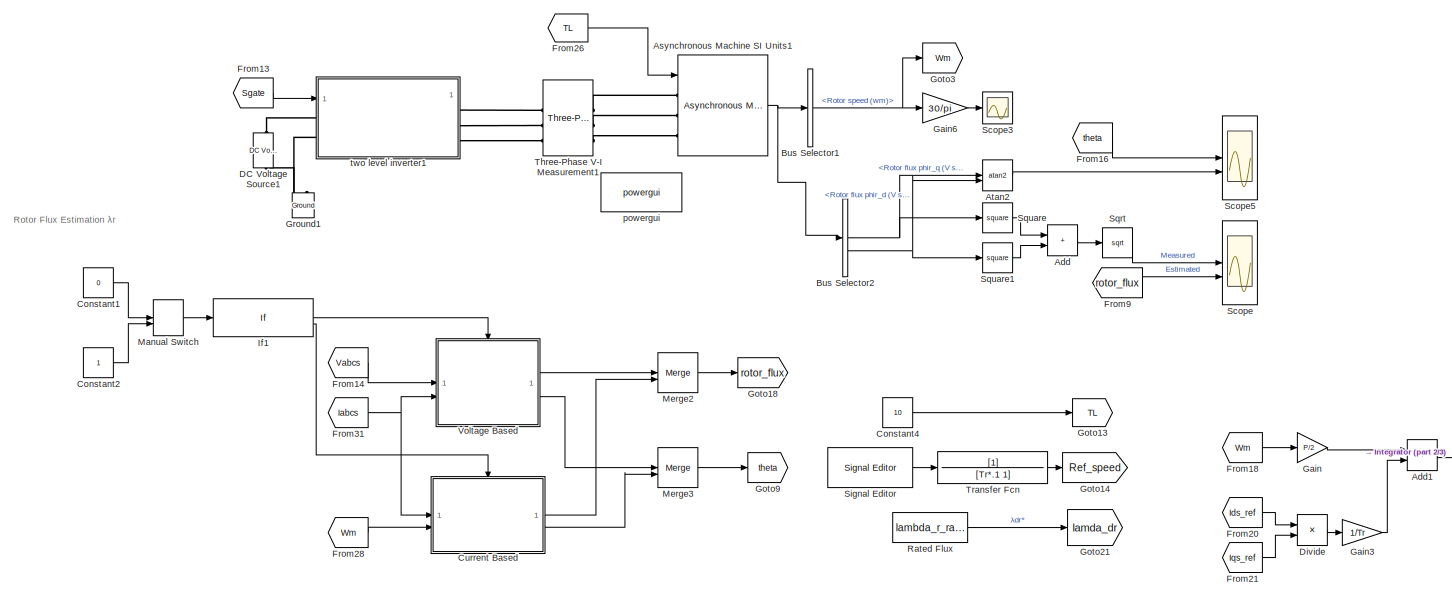
[diagram: root canvas - part 1/3, full width, top band]
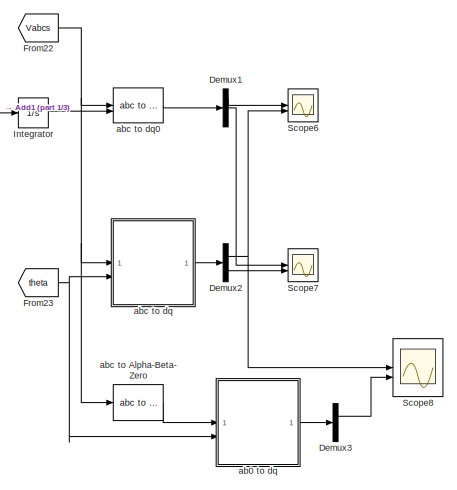
[diagram: root canvas - part 2/3, middle right region]
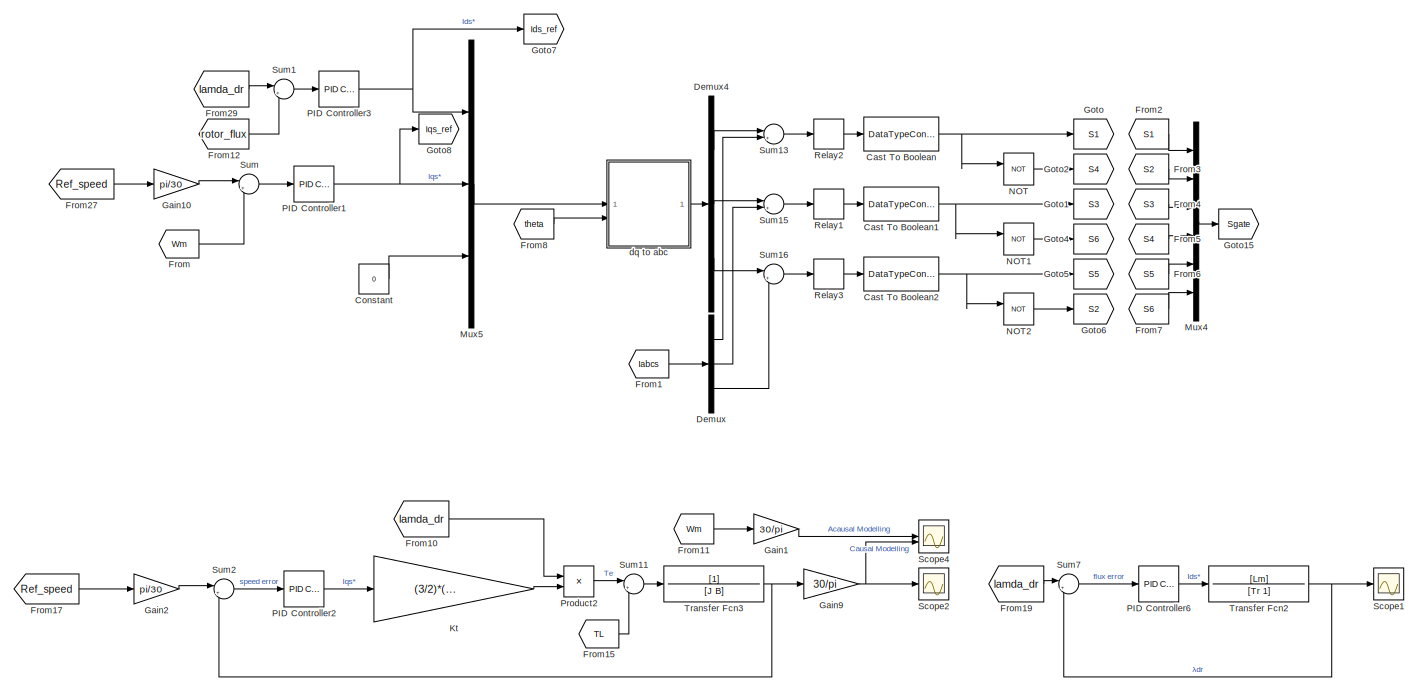
[diagram: root canvas - part 3/3, full width, bottom band]
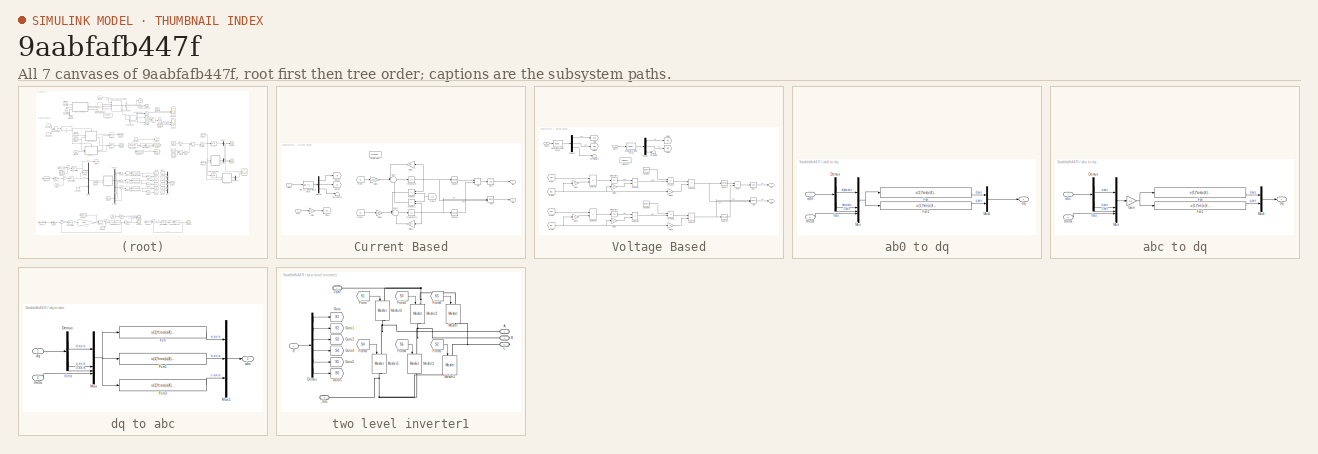
[diagram: thumbnail index - all 7 canvases of the model, root first then tree order]
MODEL slx_9aabfafb447f
KIND model
CONFIG AbsTol = auto
CONFIG EnableMultiTasking = off
CONFIG FixedStep = auto
CONFIG MaxStep = .001
CONFIG MinStep = auto
CONFIG RelTol = 1e-3
CONFIG SampleTimeConstraint = Unconstrained
CONFIG SolverName = VariableStepAuto
CONFIG StartTime = 0.0
CONFIG StopTime = 2
BLOCK [Sum] Add
  IconShape = rectangular
BLOCK [Sum] Add1
  IconShape = rectangular
BLOCK [Reference] Asynchronous Machine SI Units1  REF=spsAsynchronousMachineSIUnitsLib/Asynchronous Machine
SI Units
  SourceBlock = spsAsynchronousMachineSIUnitsLib/Asynchronous Machine\nSI Units
  SourceType = Asynchronous Machine
BLOCK [Trigonometry] Atan2
  Operator = atan2
BLOCK [BusSelector] Bus Selector1
  OutputSignals = Mechanical.Rotor speed (wm)
BLOCK [BusSelector] Bus Selector2
  OutputSignals = Rotor measurements.Rotor flux phir_q (V s),Rotor measurements.Rotor flux phir_d (V s)
BLOCK [DataTypeConversion] Cast To Boolean
  OutDataTypeStr = boolean
  RndMeth = Floor
  SaturateOnIntegerOverflow = off
BLOCK [DataTypeConversion] Cast To Boolean1
  OutDataTypeStr = boolean
  RndMeth = Floor
  SaturateOnIntegerOverflow = off
BLOCK [DataTypeConversion] Cast To Boolean2
  OutDataTypeStr = boolean
  RndMeth = Floor
  SaturateOnIntegerOverflow = off
BLOCK [Constant] Constant
  Value = 0
BLOCK [Constant] Constant1
  Value = 0
BLOCK [Constant] Constant2
BLOCK [Constant] Constant4
  Value = 10
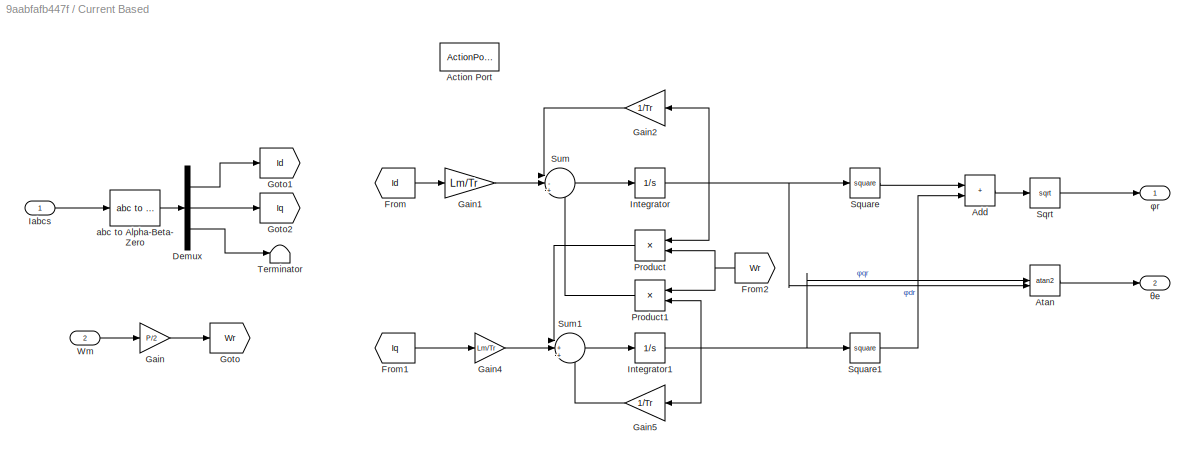
BLOCK [SubSystem] Current Based
BLOCK [ActionPort] Current Based/Action Port
  ActionPortLabel = else
BLOCK [Sum] Current Based/Add
  IconShape = rectangular
BLOCK [Trigonometry] Current Based/Atan
  Operator = atan2
BLOCK [Demux] Current Based/Demux
  Outputs = 3
BLOCK [From] Current Based/From
  GotoTag = Id
BLOCK [From] Current Based/From1
  GotoTag = Iq
BLOCK [From] Current Based/From2
  GotoTag = Wr
  NameLocation = top
BLOCK [Gain] Current Based/Gain
  Gain = P/2
BLOCK [Gain] Current Based/Gain1
  Gain = Lm/Tr
BLOCK [Gain] Current Based/Gain2
  Gain = 1/Tr
  NameLocation = top
BLOCK [Gain] Current Based/Gain4
  Gain = Lm/Tr
BLOCK [Gain] Current Based/Gain5
  Gain = 1/Tr
  NameLocation = top
BLOCK [Goto] Current Based/Goto
  GotoTag = Wr
BLOCK [Goto] Current Based/Goto1
  GotoTag = Id
BLOCK [Goto] Current Based/Goto2
  GotoTag = Iq
BLOCK [Inport] Current Based/Iabcs
BLOCK [Integrator] Current Based/Integrator
BLOCK [Integrator] Current Based/Integrator1
BLOCK [Product] Current Based/Product
  NameLocation = top
BLOCK [Product] Current Based/Product1
  NameLocation = top
BLOCK [Sqrt] Current Based/Sqrt
BLOCK [Math] Current Based/Square
  Operator = square
BLOCK [Math] Current Based/Square1
  Operator = square
BLOCK [Sum] Current Based/Sum
  Inputs = |-+|-
BLOCK [Sum] Current Based/Sum1
  Inputs = |++|-
BLOCK [Terminator] Current Based/Terminator
BLOCK [Inport] Current Based/Wm
  Port = 2
BLOCK [Reference] Current Based/abc to Alpha-Beta-Zero  REF=spsabctoAlphaBetaZeroLib/abc to
Alpha-Beta-Zero
  LibrarySourceBlock = sps_lib/Control/abc to\nAlpha-Beta-Zero
  SourceBlock = spsabctoAlphaBetaZeroLib/abc to\nAlpha-Beta-Zero
  SourceType = abc to Alpha-Beta-Zero Transformation
BLOCK [Outport] Current Based/θe
  Port = 2
BLOCK [Outport] Current Based/φr
BLOCK [Reference] DC Voltage Source1  REF=spsDCVoltageSourceLib/DC Voltage Source
  LibrarySourceBlock = sps_lib/Sources/DC Voltage Source
  SourceBlock = spsDCVoltageSourceLib/DC Voltage Source
  SourceType = DC Voltage Source
BLOCK [Demux] Demux
  Outputs = 3
BLOCK [Demux] Demux1
  Outputs = 3
BLOCK [Demux] Demux2
  Outputs = 2
BLOCK [Demux] Demux3
  Outputs = 2
BLOCK [Demux] Demux4
  Outputs = 3
BLOCK [Product] Divide
  Inputs = /*
BLOCK [From] From
  GotoTag = Wm
BLOCK [From] From1
  GotoTag = Iabcs
  TagVisibility = global
BLOCK [From] From10
  GotoTag = lamda_dr
BLOCK [From] From11
  GotoTag = Wm
BLOCK [From] From12
  GotoTag = rotor_flux
BLOCK [From] From13
  GotoTag = Sgate
BLOCK [From] From14
  GotoTag = Vabcs
  TagVisibility = global
BLOCK [From] From15
  GotoTag = TL
BLOCK [From] From16
  GotoTag = theta
BLOCK [From] From17
  GotoTag = Ref_speed
BLOCK [From] From18
  GotoTag = Wm
BLOCK [From] From19
  GotoTag = lamda_dr
BLOCK [From] From2
  GotoTag = S1
BLOCK [From] From20
  GotoTag = Ids_ref
BLOCK [From] From21
  GotoTag = Iqs_ref
BLOCK [From] From22
  GotoTag = Vabcs
  TagVisibility = global
BLOCK [From] From23
  GotoTag = theta
BLOCK [From] From26
  GotoTag = TL
BLOCK [From] From27
  GotoTag = Ref_speed
BLOCK [From] From28
  GotoTag = Wm
BLOCK [From] From29
  GotoTag = lamda_dr
BLOCK [From] From3
  GotoTag = S2
BLOCK [From] From31
  GotoTag = Iabcs
  TagVisibility = global
BLOCK [From] From4
  GotoTag = S3
BLOCK [From] From5
  GotoTag = S4
BLOCK [From] From6
  GotoTag = S5
BLOCK [From] From7
  GotoTag = S6
BLOCK [From] From8
  GotoTag = theta
BLOCK [From] From9
  GotoTag = rotor_flux
BLOCK [Gain] Gain
  Gain = P/2
BLOCK [Gain] Gain1
  Gain = 30/pi
BLOCK [Gain] Gain10
  Gain = pi/30
BLOCK [Gain] Gain2
  Gain = pi/30
BLOCK [Gain] Gain3
  Gain = 1/Tr
BLOCK [Gain] Gain6
  Gain = 30/pi
BLOCK [Gain] Gain9
  Gain = 30/pi
BLOCK [Goto] Goto
  GotoTag = S1
BLOCK [Goto] Goto1
  GotoTag = S3
BLOCK [Goto] Goto13
  GotoTag = TL
BLOCK [Goto] Goto14
  GotoTag = Ref_speed
BLOCK [Goto] Goto15
  GotoTag = Sgate
BLOCK [Goto] Goto18
  GotoTag = rotor_flux
BLOCK [Goto] Goto2
  GotoTag = S4
BLOCK [Goto] Goto21
  GotoTag = lamda_dr
BLOCK [Goto] Goto3
  GotoTag = Wm
BLOCK [Goto] Goto4
  GotoTag = S6
BLOCK [Goto] Goto5
  GotoTag = S5
BLOCK [Goto] Goto6
  GotoTag = S2
BLOCK [Goto] Goto7
  GotoTag = Ids_ref
BLOCK [Goto] Goto8
  GotoTag = Iqs_ref
BLOCK [Goto] Goto9
  GotoTag = theta
BLOCK [Reference] Ground1  REF=spsGroundLib/Ground
  LibrarySourceBlock = sps_lib/Utilities/Ground
  NameLocation = right
  SourceBlock = spsGroundLib/Ground
  SourceType = Ground
BLOCK [If] If1
  IfExpression = u1 == 0
BLOCK [Integrator] Integrator
BLOCK [Gain] Kt
  Gain = (3/2)*(P/2)*(Lm/Lr)
BLOCK [ManualSwitch] Manual Switch
  CurrentSetting = 0
BLOCK [Merge] Merge2
BLOCK [Merge] Merge3
BLOCK [Mux] Mux4
  DisplayOption = bar
  Inputs = 6
BLOCK [Mux] Mux5
  DisplayOption = bar
  Inputs = 3
BLOCK [Logic] NOT
  AllPortsSameDT = off
  IconShape = distinctive
  Operator = NOT
  OutDataTypeStr = boolean
BLOCK [Logic] NOT1
  AllPortsSameDT = off
  IconShape = distinctive
  Operator = NOT
  OutDataTypeStr = boolean
BLOCK [Logic] NOT2
  AllPortsSameDT = off
  IconShape = distinctive
  Operator = NOT
  OutDataTypeStr = boolean
BLOCK [Reference] PID Controller1  REF=slpidlib/PID Controller
  LibrarySourceBlock = simulink/Continuous/PID Controller
  SourceBlock = slpidlib/PID Controller
  SourceType = PID 1dof
BLOCK [Reference] PID Controller2  REF=slpidlib/PID Controller
  LibrarySourceBlock = simulink/Continuous/PID Controller
  SourceBlock = slpidlib/PID Controller
  SourceType = PID 1dof
BLOCK [Reference] PID Controller3  REF=slpidlib/PID Controller
  LibrarySourceBlock = simulink/Continuous/PID Controller
  SourceBlock = slpidlib/PID Controller
  SourceType = PID 1dof
BLOCK [Reference] PID Controller6  REF=slpidlib/PID Controller
  LibrarySourceBlock = simulink/Continuous/PID Controller
  SourceBlock = slpidlib/PID Controller
  SourceType = PID 1dof
BLOCK [Product] Product2
BLOCK [Constant] Rated Flux
  Value = lambda_r_rated
BLOCK [Relay] Relay1
  OffSwitchValue = (-1*Delta)/2
  OnSwitchValue = Delta/2
BLOCK [Relay] Relay2
  OffSwitchValue = (-1*Delta)/2
  OnSwitchValue = Delta/2
BLOCK [Relay] Relay3
  OffSwitchValue = (-1*Delta)/2
  OnSwitchValue = Delta/2
BLOCK [Scope] Scope
  Floating = off
  NumInputPorts = 2
  ScopeSpecificationString = Simulink.scopes.TimeScopeBlockCfg('CurrentConfiguration', extmgr.ConfigurationSet(extmgr.Configuration('Core','General UI',true),extmgr.Configuration('Core','Source UI',true),extmgr.Configuration('Sources','WiredSimulink',true),extmgr.Configuration('Visuals','Time Domain',true,'SerializedDisplays',{struct('MinYLimReal','-0.08443','MaxYLimReal','0.75987','YLabelReal','','MinYLimMag','0.00000','MaxY...<+1536ch>
BLOCK [Scope] Scope1
  Floating = off
  NumInputPorts = 1
  ScopeSpecificationString = Simulink.scopes.TimeScopeBlockCfg('CurrentConfiguration', extmgr.ConfigurationSet(extmgr.Configuration('Core','General UI',true),extmgr.Configuration('Core','Source UI',true),extmgr.Configuration('Sources','WiredSimulink',true,'DataLoggingVariableName','ScopeData1'),extmgr.Configuration('Visuals','Time Domain',true,'SerializedDisplays',{struct('MinYLimReal','0.51285','MaxYLimReal','0.70996','YLabe...<+1404ch>
BLOCK [Scope] Scope2
  Floating = off
  NumInputPorts = 1
  ScopeSpecificationString = Simulink.scopes.TimeScopeBlockCfg('CurrentConfiguration', extmgr.ConfigurationSet(extmgr.Configuration('Core','General UI',true),extmgr.Configuration('Core','Source UI',true),extmgr.Configuration('Sources','WiredSimulink',true,'DataLoggingVariableName','ScopeData2'),extmgr.Configuration('Visuals','Time Domain',true,'SerializedDisplays',{struct('MinYLimReal','-62.4541','MaxYLimReal','562.0165','YLa...<+1452ch>
BLOCK [Scope] Scope3
  Floating = off
  NumInputPorts = 1
  ScopeSpecificationString = Simulink.scopes.TimeScopeBlockCfg('CurrentConfiguration', extmgr.ConfigurationSet(extmgr.Configuration('Core','General UI',true),extmgr.Configuration('Core','Source UI',true),extmgr.Configuration('Sources','WiredSimulink',true,'DataLoggingVariableName','ScopeData3'),extmgr.Configuration('Visuals','Time Domain',true,'SerializedDisplays',{struct('MinYLimReal','-85.89241','MaxYLimReal','620.50025','Y...<+1447ch>
BLOCK [Scope] Scope4
  Floating = off
  NumInputPorts = 2
  ScopeSpecificationString = Simulink.scopes.TimeScopeBlockCfg('CurrentConfiguration', extmgr.ConfigurationSet(extmgr.Configuration('Core','General UI',true),extmgr.Configuration('Core','Source UI',true),extmgr.Configuration('Sources','WiredSimulink',true,'DataLoggingVariableName','ScopeData1'),extmgr.Configuration('Visuals','Time Domain',true,'SerializedDisplays',{struct('MinYLimReal','-206.98974','MaxYLimReal','1692.90891',...<+1617ch>
BLOCK [Scope] Scope5
  Floating = off
  NumInputPorts = 2
  ScopeSpecificationString = Simulink.scopes.TimeScopeBlockCfg('CurrentConfiguration', extmgr.ConfigurationSet(extmgr.Configuration('Core','General UI',true),extmgr.Configuration('Core','Source UI',true),extmgr.Configuration('Sources','WiredSimulink',true,'DataLoggingVariableName','ScopeData5'),extmgr.Configuration('Visuals','Time Domain',true,'SerializedDisplays',{struct('MinYLimReal','-3.92699','MaxYLimReal','3.92699','YLab...<+1519ch>
BLOCK [Scope] Scope6
  Floating = off
  NumInputPorts = 2
  ScopeSpecificationString = Simulink.scopes.TimeScopeBlockCfg('CurrentConfiguration', extmgr.ConfigurationSet(extmgr.Configuration('Core','General UI',true),extmgr.Configuration('Core','Source UI',true),extmgr.Configuration('Sources','WiredSimulink',true,'DataLoggingVariableName','ScopeData1'),extmgr.Configuration('Visuals','Time Domain',true,'SerializedDisplays',{struct('MinYLimReal','-22.13596','MaxYLimReal','175.44604','Y...<+1536ch>
BLOCK [Scope] Scope7
  Floating = off
  NumInputPorts = 2
  ScopeSpecificationString = Simulink.scopes.TimeScopeBlockCfg('CurrentConfiguration', extmgr.ConfigurationSet(extmgr.Configuration('Core','General UI',true),extmgr.Configuration('Core','Source UI',true),extmgr.Configuration('Sources','WiredSimulink',true,'DataLoggingVariableName','ScopeData2'),extmgr.Configuration('Visuals','Time Domain',true,'SerializedDisplays',{struct('MinYLimReal','-333.77261','MaxYLimReal','333.07768','...<+1436ch>
BLOCK [Scope] Scope8
  Floating = off
  NumInputPorts = 2
  ScopeSpecificationString = Simulink.scopes.TimeScopeBlockCfg('CurrentConfiguration', extmgr.ConfigurationSet(extmgr.Configuration('Core','General UI',true),extmgr.Configuration('Core','Source UI',true),extmgr.Configuration('Sources','WiredSimulink',true,'DataLoggingVariableName','ScopeData3'),extmgr.Configuration('Visuals','Time Domain',true,'SerializedDisplays',{struct('MinYLimReal','-333.43454','MaxYLimReal','333.34399','...<+2045ch>
BLOCK [Reference] Signal Editor  REF=SignalEditorBlockLib/Signal Editor
  LibrarySourceBlock = simulink/Sources/Signal Editor
  SourceBlock = SignalEditorBlockLib/Signal Editor
  SourceType = SignalEditor
  UserDataPersistent = on
BLOCK [Sqrt] Sqrt
BLOCK [Math] Square
  Operator = square
BLOCK [Math] Square1
  Operator = square
BLOCK [Sum] Sum
  Inputs = |+-
BLOCK [Sum] Sum1
  Inputs = |+-
BLOCK [Sum] Sum11
  Inputs = |+-
BLOCK [Sum] Sum13
  Inputs = |+-
BLOCK [Sum] Sum15
  Inputs = |+-
BLOCK [Sum] Sum16
  Inputs = |+-
BLOCK [Sum] Sum2
  Inputs = |+-
BLOCK [Sum] Sum7
  Inputs = |+-
BLOCK [Reference] Three-Phase V-I Measurement1  REF=spsThreePhaseVIMeasurementLib/Three-Phase
V-I Measurement
  SourceBlock = spsThreePhaseVIMeasurementLib/Three-Phase\nV-I Measurement
  SourceType = Three-Phase VI Measurement
BLOCK [TransferFcn] Transfer Fcn
  Denominator = [Tr*.1 1]
BLOCK [TransferFcn] Transfer Fcn2
  Denominator = [Tr 1]
  Numerator = [Lm]
BLOCK [TransferFcn] Transfer Fcn3
  Denominator = [J B]
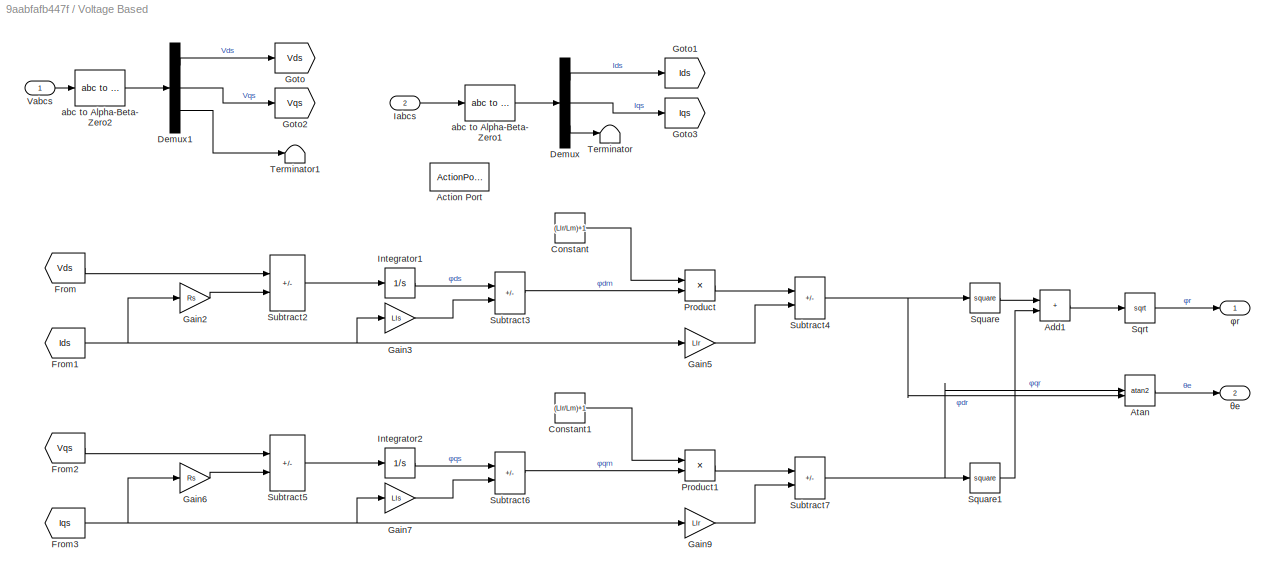
BLOCK [SubSystem] Voltage Based
BLOCK [ActionPort] Voltage Based/Action Port
  ActionPortLabel = if(u1 == 0)
BLOCK [Sum] Voltage Based/Add1
  IconShape = rectangular
BLOCK [Trigonometry] Voltage Based/Atan
  Operator = atan2
BLOCK [Constant] Voltage Based/Constant
  Value = (Llr/Lm)+1
BLOCK [Constant] Voltage Based/Constant1
  Value = (Llr/Lm)+1
BLOCK [Demux] Voltage Based/Demux
  Outputs = 3
BLOCK [Demux] Voltage Based/Demux1
  Outputs = 3
BLOCK [From] Voltage Based/From
  GotoTag = Vds
BLOCK [From] Voltage Based/From1
  GotoTag = Ids
BLOCK [From] Voltage Based/From2
  GotoTag = Vqs
BLOCK [From] Voltage Based/From3
  GotoTag = Iqs
BLOCK [Gain] Voltage Based/Gain2
  Gain = Rs
BLOCK [Gain] Voltage Based/Gain3
  Gain = Lls
BLOCK [Gain] Voltage Based/Gain5
  Gain = Llr
BLOCK [Gain] Voltage Based/Gain6
  Gain = Rs
BLOCK [Gain] Voltage Based/Gain7
  Gain = Lls
BLOCK [Gain] Voltage Based/Gain9
  Gain = Llr
BLOCK [Goto] Voltage Based/Goto
  GotoTag = Vds
BLOCK [Goto] Voltage Based/Goto1
  GotoTag = Ids
BLOCK [Goto] Voltage Based/Goto2
  GotoTag = Vqs
BLOCK [Goto] Voltage Based/Goto3
  GotoTag = Iqs
BLOCK [Inport] Voltage Based/Iabcs
  Port = 2
BLOCK [Integrator] Voltage Based/Integrator1
BLOCK [Integrator] Voltage Based/Integrator2
BLOCK [Product] Voltage Based/Product
BLOCK [Product] Voltage Based/Product1
BLOCK [Sqrt] Voltage Based/Sqrt
BLOCK [Math] Voltage Based/Square
  Operator = square
BLOCK [Math] Voltage Based/Square1
  Operator = square
BLOCK [Sum] Voltage Based/Subtract2
  IconShape = rectangular
  Inputs = +-
BLOCK [Sum] Voltage Based/Subtract3
  IconShape = rectangular
  Inputs = +-
BLOCK [Sum] Voltage Based/Subtract4
  IconShape = rectangular
  Inputs = +-
BLOCK [Sum] Voltage Based/Subtract5
  IconShape = rectangular
  Inputs = +-
BLOCK [Sum] Voltage Based/Subtract6
  IconShape = rectangular
  Inputs = +-
BLOCK [Sum] Voltage Based/Subtract7
  IconShape = rectangular
  Inputs = +-
BLOCK [Terminator] Voltage Based/Terminator
BLOCK [Terminator] Voltage Based/Terminator1
BLOCK [Inport] Voltage Based/Vabcs
BLOCK [Reference] Voltage Based/abc to Alpha-Beta-Zero1  REF=spsabctoAlphaBetaZeroLib/abc to
Alpha-Beta-Zero
  SourceBlock = spsabctoAlphaBetaZeroLib/abc to\nAlpha-Beta-Zero
  SourceType = abc to Alpha-Beta-Zero Transformation
BLOCK [Reference] Voltage Based/abc to Alpha-Beta-Zero2  REF=spsabctoAlphaBetaZeroLib/abc to
Alpha-Beta-Zero
  SourceBlock = spsabctoAlphaBetaZeroLib/abc to\nAlpha-Beta-Zero
  SourceType = abc to Alpha-Beta-Zero Transformation
BLOCK [Outport] Voltage Based/θe
  Port = 2
BLOCK [Outport] Voltage Based/φr
BLOCK [SubSystem] ab0 to dq
BLOCK [Demux] ab0 to dq/Demux
  Outputs = 3
BLOCK [Fcn] ab0 to dq/Fcn
  Expr = u(1)*cos(u(4))+u(2)*sin(u(4))
BLOCK [Fcn] ab0 to dq/Fcn1
  Expr = -u(1)*sin(u(4))+u(2)*cos(u(4))
BLOCK [Mux] ab0 to dq/Mux
  DisplayOption = bar
BLOCK [Mux] ab0 to dq/Mux1
  DisplayOption = bar
  Inputs = 2
BLOCK [Outport] ab0 to dq/dq
BLOCK [Inport] ab0 to dq/theta
  Port = 2
BLOCK [Inport] ab0 to dq/αβ0
BLOCK [Reference] abc to Alpha-Beta-Zero  REF=spsabctoAlphaBetaZeroLib/abc to
Alpha-Beta-Zero
  LibrarySourceBlock = sps_lib/Control/abc to\nAlpha-Beta-Zero
  SourceBlock = spsabctoAlphaBetaZeroLib/abc to\nAlpha-Beta-Zero
  SourceType = abc to Alpha-Beta-Zero Transformation
BLOCK [SubSystem] abc to dq
BLOCK [Demux] abc to dq/Demux
  Outputs = 3
BLOCK [Fcn] abc to dq/Fcn
  Expr = u(1)*cos(u(4))+u(2)*cos(u(4)-(2*pi/3))+u(3)*cos(u(4)+(2*pi/3))
BLOCK [Fcn] abc to dq/Fcn1
  Expr = -u(1)*sin(u(4))-u(2)*sin(u(4)-(2*pi/3))-u(3)*sin(u(4)+(2*pi/3))
BLOCK [Gain] abc to dq/Gain
  Gain = 2/3
BLOCK [Mux] abc to dq/Mux
  DisplayOption = bar
BLOCK [Mux] abc to dq/Mux1
  DisplayOption = bar
  Inputs = 2
BLOCK [Inport] abc to dq/abc
BLOCK [Outport] abc to dq/dq
BLOCK [Inport] abc to dq/theta
  Port = 2
BLOCK [Reference] abc to dq0  REF=spsabctodq0Lib/abc to dq0
  LibrarySourceBlock = sps_lib/Control/abc to dq0
  SourceBlock = spsabctodq0Lib/abc to dq0
  SourceType = abc to dq0 Transformation
BLOCK [SubSystem] dq to abc
BLOCK [Demux] dq to abc/Demux
  Outputs = 3
BLOCK [Fcn] dq to abc/Fcn
  Expr = u(1)*cos(u(4))-u(2)*sin(u(4))+u(3)
BLOCK [Fcn] dq to abc/Fcn1
  Expr = u(1)*cos(u(4)-(2*pi/3))-u(2)*sin(u(4)-(2*pi/3))+u(3)
BLOCK [Fcn] dq to abc/Fcn3
  Expr = u(1)*cos(u(4)+(2*pi/3))-u(2)*sin(u(4)+(2*pi/3))+u(3)
BLOCK [Mux] dq to abc/Mux
  DisplayOption = bar
BLOCK [Mux] dq to abc/Mux1
  DisplayOption = bar
  Inputs = 3
BLOCK [Outport] dq to abc/abc
BLOCK [Inport] dq to abc/dq
BLOCK [Inport] dq to abc/theta
  Port = 2
BLOCK [Reference] powergui  REF=sps_lib/powergui
  Priority = 1
  SourceBlock = sps_lib/powergui
  SourceType = PSB option menu block
BLOCK [SubSystem] two level inverter1
BLOCK [PMIOPort] two level inverter1/+Vdc
  Side = Left
BLOCK [PMIOPort] two level inverter1/-Vdc
  Port = 3
  Side = Left
BLOCK [PMIOPort] two level inverter1/A
  Port = 2
  Side = Right
BLOCK [PMIOPort] two level inverter1/B
  Port = 4
  Side = Right
BLOCK [PMIOPort] two level inverter1/C
  Port = 5
  Side = Right
BLOCK [Demux] two level inverter1/Demux
  Outputs = 6
BLOCK [From] two level inverter1/From
  GotoTag = S1
BLOCK [From] two level inverter1/From1
  GotoTag = S3
BLOCK [From] two level inverter1/From2
  GotoTag = S5
BLOCK [From] two level inverter1/From3
  GotoTag = S4
BLOCK [From] two level inverter1/From4
  GotoTag = S6
BLOCK [From] two level inverter1/From5
  GotoTag = S2
BLOCK [Goto] two level inverter1/Goto
  GotoTag = S1
BLOCK [Goto] two level inverter1/Goto1
  GotoTag = S2
BLOCK [Goto] two level inverter1/Goto2
  GotoTag = S3
BLOCK [Goto] two level inverter1/Goto3
  GotoTag = S6
BLOCK [Goto] two level inverter1/Goto4
  GotoTag = S4
BLOCK [Goto] two level inverter1/Goto5
  GotoTag = S5
BLOCK [Reference] two level inverter1/Mosfet  REF=spsMosfetLib/Mosfet
  LibrarySourceBlock = sps_lib/Power Electronics/Mosfet
  NameLocation = right
  SourceBlock = spsMosfetLib/Mosfet
  SourceType = Mosfet
BLOCK [Reference] two level inverter1/Mosfet1  REF=spsMosfetLib/Mosfet
  LibrarySourceBlock = sps_lib/Power Electronics/Mosfet
  NameLocation = right
  SourceBlock = spsMosfetLib/Mosfet
  SourceType = Mosfet
BLOCK [Reference] two level inverter1/Mosfet2  REF=spsMosfetLib/Mosfet
  LibrarySourceBlock = sps_lib/Power Electronics/Mosfet
  NameLocation = right
  SourceBlock = spsMosfetLib/Mosfet
  SourceType = Mosfet
BLOCK [Reference] two level inverter1/Mosfet3  REF=spsMosfetLib/Mosfet
  LibrarySourceBlock = sps_lib/Power Electronics/Mosfet
  NameLocation = right
  SourceBlock = spsMosfetLib/Mosfet
  SourceType = Mosfet
BLOCK [Reference] two level inverter1/Mosfet4  REF=spsMosfetLib/Mosfet
  LibrarySourceBlock = sps_lib/Power Electronics/Mosfet
  NameLocation = right
  SourceBlock = spsMosfetLib/Mosfet
  SourceType = Mosfet
BLOCK [Reference] two level inverter1/Mosfet5  REF=spsMosfetLib/Mosfet
  LibrarySourceBlock = sps_lib/Power Electronics/Mosfet
  NameLocation = right
  SourceBlock = spsMosfetLib/Mosfet
  SourceType = Mosfet
BLOCK [Inport] two level inverter1/g
ANNOTATION (root): Rotor Flux Estimation λr
LINE Add1:1 -> Integrator:1
LINE Add:1 -> Sqrt:1
NET Asynchronous Machine SI Units1:1 -> Bus Selector1:1, Bus Selector2:1
LINE Atan2:1 -> Scope5:2
NET Bus Selector1:1 -> Gain6:1, Goto3:1
NET Bus Selector2:1 -> Atan2:1, Square:1
NET Bus Selector2:2 -> Atan2:2, Square1:1
NET Cast To Boolean1:1 -> Goto1:1, NOT1:1
NET Cast To Boolean2:1 -> Goto5:1, NOT2:1
NET Cast To Boolean:1 -> Goto:1, NOT:1
LINE Constant1:1 -> Manual Switch:1
LINE Constant2:1 -> Manual Switch:2
LINE Constant4:1 -> Goto13:1
LINE Constant:1 -> Mux5:3
LINE Current Based/Add:1 -> Current Based/Sqrt:1
LINE Current Based/Atan:1 -> Current Based/θe:1
LINE Current Based/Demux:1 -> Current Based/Goto1:1
LINE Current Based/Demux:2 -> Current Based/Goto2:1
LINE Current Based/Demux:3 -> Current Based/Terminator:1
LINE Current Based/From1:1 -> Current Based/Gain4:1
NET Current Based/From2:1 -> Current Based/Product1:1, Current Based/Product:2
LINE Current Based/From:1 -> Current Based/Gain1:1
LINE Current Based/Gain1:1 -> Current Based/Sum:2
LINE Current Based/Gain2:1 -> Current Based/Sum:1
LINE Current Based/Gain4:1 -> Current Based/Sum1:2
LINE Current Based/Gain5:1 -> Current Based/Sum1:3
LINE Current Based/Gain:1 -> Current Based/Goto:1
LINE Current Based/Iabcs:1 -> Current Based/abc to Alpha-Beta-Zero:1
NET Current Based/Integrator1:1 -> Current Based/Atan:1, Current Based/Gain5:1, Current Based/Product1:2, Current Based/Square1:1
NET Current Based/Integrator:1 -> Current Based/Atan:2, Current Based/Gain2:1, Current Based/Product:1, Current Based/Square:1
LINE Current Based/Product1:1 -> Current Based/Sum:3
LINE Current Based/Product:1 -> Current Based/Sum1:1
LINE Current Based/Sqrt:1 -> Current Based/φr:1
LINE Current Based/Square1:1 -> Current Based/Add:2
LINE Current Based/Square:1 -> Current Based/Add:1
LINE Current Based/Sum1:1 -> Current Based/Integrator1:1
LINE Current Based/Sum:1 -> Current Based/Integrator:1
LINE Current Based/Wm:1 -> Current Based/Gain:1
LINE Current Based/abc to Alpha-Beta-Zero:1 -> Current Based/Demux:1
LINE Current Based:1 -> Merge2:2
LINE Current Based:2 -> Merge3:2
LINE Demux1:1 -> Scope6:1
LINE Demux1:2 -> Scope7:1
NET Demux2:1 -> Scope6:2, Scope8:1
LINE Demux2:2 -> Scope7:2
LINE Demux3:1 -> Scope8:2
LINE Demux4:1 -> Sum13:1
LINE Demux4:2 -> Sum15:1
LINE Demux4:3 -> Sum16:1
LINE Demux:1 -> Sum13:2
LINE Demux:2 -> Sum15:2
LINE Demux:3 -> Sum16:2
LINE Divide:1 -> Gain3:1
LINE From10:1 -> Product2:1
LINE From11:1 -> Gain1:1
LINE From12:1 -> Sum1:2
LINE From13:1 -> two level inverter1:1
LINE From14:1 -> Voltage Based:1
LINE From15:1 -> Sum11:2
LINE From16:1 -> Scope5:1
LINE From17:1 -> Gain2:1
LINE From18:1 -> Gain:1
LINE From19:1 -> Sum7:1
LINE From1:1 -> Demux:1
LINE From20:1 -> Divide:1
LINE From21:1 -> Divide:2
NET From22:1 -> abc to Alpha-Beta-Zero:1, abc to dq0:1, abc to dq:1
NET From23:1 -> ab0 to dq:2, abc to dq:2
LINE From26:1 -> Asynchronous Machine SI Units1:1
LINE From27:1 -> Gain10:1
LINE From28:1 -> Current Based:2
LINE From29:1 -> Sum1:1
LINE From2:1 -> Mux4:1
NET From31:1 -> Current Based:1, Voltage Based:2
LINE From3:1 -> Mux4:2
LINE From4:1 -> Mux4:3
LINE From5:1 -> Mux4:4
LINE From6:1 -> Mux4:5
LINE From7:1 -> Mux4:6
LINE From8:1 -> dq to abc:2
LINE From9:1 -> Scope:2
LINE From:1 -> Sum:2
LINE Gain10:1 -> Sum:1
LINE Gain1:1 -> Scope4:1
LINE Gain2:1 -> Sum2:1
LINE Gain3:1 -> Add1:2
LINE Gain6:1 -> Scope3:1
NET Gain9:1 -> Scope2:1, Scope4:2
LINE Gain:1 -> Add1:1
LINE If1:1 -> Voltage Based:ifaction
LINE If1:2 -> Current Based:ifaction
LINE Integrator:1 -> abc to dq0:2
LINE Kt:1 -> Product2:2
LINE Manual Switch:1 -> If1:1
LINE Merge2:1 -> Goto18:1
LINE Merge3:1 -> Goto9:1
LINE Mux4:1 -> Goto15:1
LINE Mux5:1 -> dq to abc:1
LINE NOT1:1 -> Goto4:1
LINE NOT2:1 -> Goto6:1
LINE NOT:1 -> Goto2:1
NET PID Controller1:1 -> Goto8:1, Mux5:2
LINE PID Controller2:1 -> Kt:1
NET PID Controller3:1 -> Goto7:1, Mux5:1
LINE PID Controller6:1 -> Transfer Fcn2:1
LINE Product2:1 -> Sum11:1
LINE Rated Flux:1 -> Goto21:1
LINE Relay1:1 -> Cast To Boolean1:1
LINE Relay2:1 -> Cast To Boolean:1
LINE Relay3:1 -> Cast To Boolean2:1
LINE Signal Editor:1 -> Transfer Fcn:1
LINE Sqrt:1 -> Scope:1
LINE Square1:1 -> Add:2
LINE Square:1 -> Add:1
LINE Sum11:1 -> Transfer Fcn3:1
LINE Sum13:1 -> Relay2:1
LINE Sum15:1 -> Relay1:1
LINE Sum16:1 -> Relay3:1
LINE Sum1:1 -> PID Controller3:1
LINE Sum2:1 -> PID Controller2:1
LINE Sum7:1 -> PID Controller6:1
LINE Sum:1 -> PID Controller1:1
NET Transfer Fcn2:1 -> Scope1:1, Sum7:2
NET Transfer Fcn3:1 -> Gain9:1, Sum2:2
LINE Transfer Fcn:1 -> Goto14:1
LINE Voltage Based/Add1:1 -> Voltage Based/Sqrt:1
LINE Voltage Based/Atan:1 -> Voltage Based/θe:1
LINE Voltage Based/Constant1:1 -> Voltage Based/Product1:1
LINE Voltage Based/Constant:1 -> Voltage Based/Product:1
LINE Voltage Based/Demux1:1 -> Voltage Based/Goto:1
LINE Voltage Based/Demux1:2 -> Voltage Based/Goto2:1
LINE Voltage Based/Demux1:3 -> Voltage Based/Terminator1:1
LINE Voltage Based/Demux:1 -> Voltage Based/Goto1:1
LINE Voltage Based/Demux:2 -> Voltage Based/Goto3:1
LINE Voltage Based/Demux:3 -> Voltage Based/Terminator:1
NET Voltage Based/From1:1 -> Voltage Based/Gain2:1, Voltage Based/Gain3:1, Voltage Based/Gain5:1
LINE Voltage Based/From2:1 -> Voltage Based/Subtract5:1
NET Voltage Based/From3:1 -> Voltage Based/Gain6:1, Voltage Based/Gain7:1, Voltage Based/Gain9:1
LINE Voltage Based/From:1 -> Voltage Based/Subtract2:1
LINE Voltage Based/Gain2:1 -> Voltage Based/Subtract2:2
LINE Voltage Based/Gain3:1 -> Voltage Based/Subtract3:2
LINE Voltage Based/Gain5:1 -> Voltage Based/Subtract4:2
LINE Voltage Based/Gain6:1 -> Voltage Based/Subtract5:2
LINE Voltage Based/Gain7:1 -> Voltage Based/Subtract6:2
LINE Voltage Based/Gain9:1 -> Voltage Based/Subtract7:2
LINE Voltage Based/Iabcs:1 -> Voltage Based/abc to Alpha-Beta-Zero1:1
LINE Voltage Based/Integrator1:1 -> Voltage Based/Subtract3:1
LINE Voltage Based/Integrator2:1 -> Voltage Based/Subtract6:1
LINE Voltage Based/Product1:1 -> Voltage Based/Subtract7:1
LINE Voltage Based/Product:1 -> Voltage Based/Subtract4:1
LINE Voltage Based/Sqrt:1 -> Voltage Based/φr:1
LINE Voltage Based/Square1:1 -> Voltage Based/Add1:2
LINE Voltage Based/Square:1 -> Voltage Based/Add1:1
LINE Voltage Based/Subtract2:1 -> Voltage Based/Integrator1:1
LINE Voltage Based/Subtract3:1 -> Voltage Based/Product:2
NET Voltage Based/Subtract4:1 -> Voltage Based/Atan:2, Voltage Based/Square:1
LINE Voltage Based/Subtract5:1 -> Voltage Based/Integrator2:1
LINE Voltage Based/Subtract6:1 -> Voltage Based/Product1:2
NET Voltage Based/Subtract7:1 -> Voltage Based/Atan:1, Voltage Based/Square1:1
LINE Voltage Based/Vabcs:1 -> Voltage Based/abc to Alpha-Beta-Zero2:1
LINE Voltage Based/abc to Alpha-Beta-Zero1:1 -> Voltage Based/Demux:1
LINE Voltage Based/abc to Alpha-Beta-Zero2:1 -> Voltage Based/Demux1:1
LINE Voltage Based:1 -> Merge2:1
LINE Voltage Based:2 -> Merge3:1
LINE ab0 to dq/Demux:1 -> ab0 to dq/Mux:1
LINE ab0 to dq/Demux:2 -> ab0 to dq/Mux:2
LINE ab0 to dq/Demux:3 -> ab0 to dq/Mux:3
LINE ab0 to dq/Fcn1:1 -> ab0 to dq/Mux1:2
LINE ab0 to dq/Fcn:1 -> ab0 to dq/Mux1:1
LINE ab0 to dq/Mux1:1 -> ab0 to dq/dq:1
NET ab0 to dq/Mux:1 -> ab0 to dq/Fcn1:1, ab0 to dq/Fcn:1
LINE ab0 to dq/theta:1 -> ab0 to dq/Mux:4
LINE ab0 to dq/αβ0:1 -> ab0 to dq/Demux:1
LINE ab0 to dq:1 -> Demux3:1
LINE abc to Alpha-Beta-Zero:1 -> ab0 to dq:1
LINE abc to dq/Demux:1 -> abc to dq/Mux:1
LINE abc to dq/Demux:2 -> abc to dq/Mux:2
LINE abc to dq/Demux:3 -> abc to dq/Mux:3
LINE abc to dq/Fcn1:1 -> abc to dq/Mux1:2
LINE abc to dq/Fcn:1 -> abc to dq/Mux1:1
NET abc to dq/Gain:1 -> abc to dq/Fcn1:1, abc to dq/Fcn:1
LINE abc to dq/Mux1:1 -> abc to dq/dq:1
LINE abc to dq/Mux:1 -> abc to dq/Gain:1
LINE abc to dq/abc:1 -> abc to dq/Demux:1
LINE abc to dq/theta:1 -> abc to dq/Mux:4
LINE abc to dq0:1 -> Demux1:1
LINE abc to dq:1 -> Demux2:1
LINE dq to abc/Demux:1 -> dq to abc/Mux:1
LINE dq to abc/Demux:2 -> dq to abc/Mux:2
LINE dq to abc/Demux:3 -> dq to abc/Mux:3
LINE dq to abc/Fcn1:1 -> dq to abc/Mux1:2
LINE dq to abc/Fcn3:1 -> dq to abc/Mux1:3
LINE dq to abc/Fcn:1 -> dq to abc/Mux1:1
LINE dq to abc/Mux1:1 -> dq to abc/abc:1
NET dq to abc/Mux:1 -> dq to abc/Fcn1:1, dq to abc/Fcn3:1, dq to abc/Fcn:1
LINE dq to abc/dq:1 -> dq to abc/Demux:1
LINE dq to abc/theta:1 -> dq to abc/Mux:4
LINE dq to abc:1 -> Demux4:1
LINE two level inverter1/Demux:1 -> two level inverter1/Goto:1
LINE two level inverter1/Demux:2 -> two level inverter1/Goto1:1
LINE two level inverter1/Demux:3 -> two level inverter1/Goto2:1
LINE two level inverter1/Demux:4 -> two level inverter1/Goto4:1
LINE two level inverter1/Demux:5 -> two level inverter1/Goto5:1
LINE two level inverter1/Demux:6 -> two level inverter1/Goto3:1
LINE two level inverter1/From1:1 -> two level inverter1/Mosfet2:1
LINE two level inverter1/From2:1 -> two level inverter1/Mosfet:1
LINE two level inverter1/From3:1 -> two level inverter1/Mosfet5:1
LINE two level inverter1/From4:1 -> two level inverter1/Mosfet3:1
LINE two level inverter1/From5:1 -> two level inverter1/Mosfet1:1
LINE two level inverter1/From:1 -> two level inverter1/Mosfet4:1
LINE two level inverter1/g:1 -> two level inverter1/Demux:1
PLINE Asynchronous Machine SI Units1:LConn1 -- Three-Phase V-I Measurement1:RConn1
PLINE Asynchronous Machine SI Units1:LConn2 -- Three-Phase V-I Measurement1:RConn2
PLINE Asynchronous Machine SI Units1:LConn3 -- Three-Phase V-I Measurement1:RConn3
PNET net1: DC Voltage Source1:LConn1 -- Ground1:LConn1 -- two level inverter1:LConn2
PLINE DC Voltage Source1:RConn1 -- two level inverter1:LConn1
PLINE Three-Phase V-I Measurement1:LConn1 -- two level inverter1:RConn1
PLINE Three-Phase V-I Measurement1:LConn2 -- two level inverter1:RConn2
PLINE Three-Phase V-I Measurement1:LConn3 -- two level inverter1:RConn3
PNET net2: two level inverter1/+Vdc:RConn1 -- two level inverter1/Mosfet2:LConn1 -- two level inverter1/Mosfet4:LConn1 -- two level inverter1/Mosfet:LConn1
PNET net3: two level inverter1/-Vdc:RConn1 -- two level inverter1/Mosfet1:RConn1 -- two level inverter1/Mosfet3:RConn1 -- two level inverter1/Mosfet5:RConn1
PNET net4: two level inverter1/A:RConn1 -- two level inverter1/Mosfet4:RConn1 -- two level inverter1/Mosfet5:LConn1
PNET net5: two level inverter1/B:RConn1 -- two level inverter1/Mosfet2:RConn1 -- two level inverter1/Mosfet3:LConn1
PNET net6: two level inverter1/C:RConn1 -- two level inverter1/Mosfet1:LConn1 -- two level inverter1/Mosfet:RConn1
note: NET lines group one-source signal fan-out (src -> all destinations, sorted); 1:1 wires keep LINE; PNET lines group multi-terminal physical nets as a canonical sorted terminal list (undirected conserving connections); 2-terminal nets keep the pairwise PLINE form
